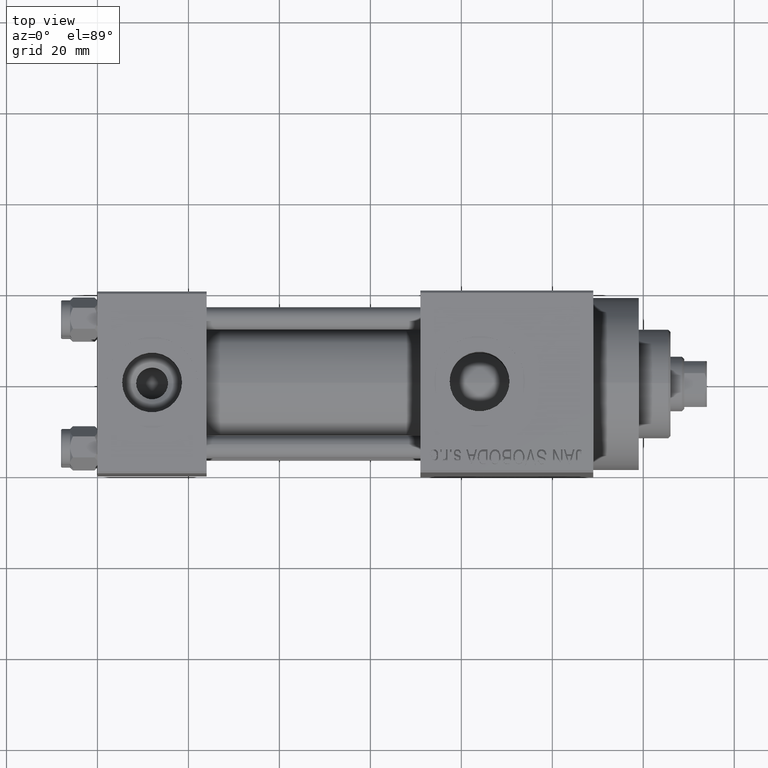
[diagram: clean part render]
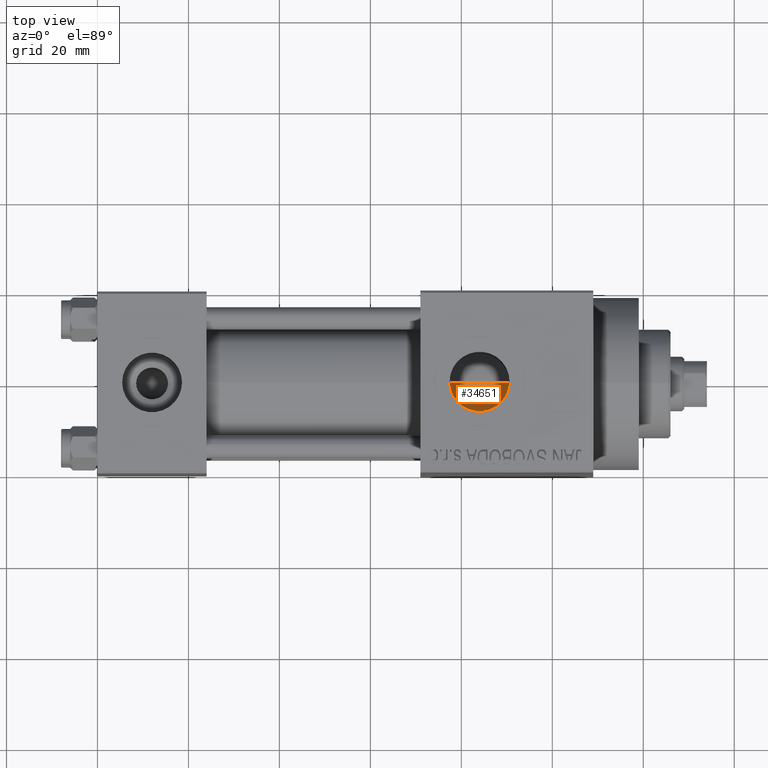
[diagram: same view with one face highlighted and labeled with its STEP entity id]
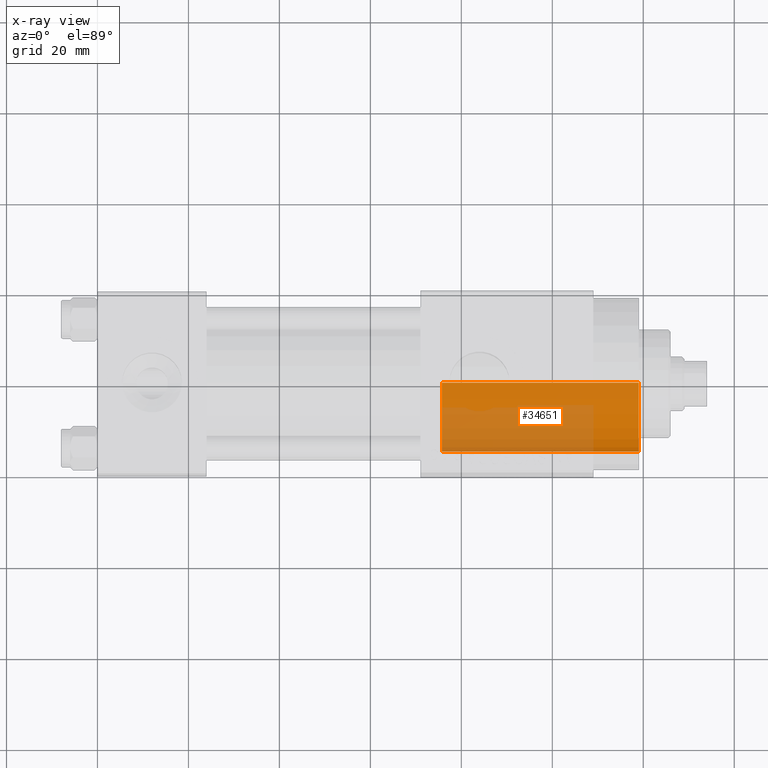
[diagram: x-ray of the same camera — body ghosted, the highlighted face saturated]
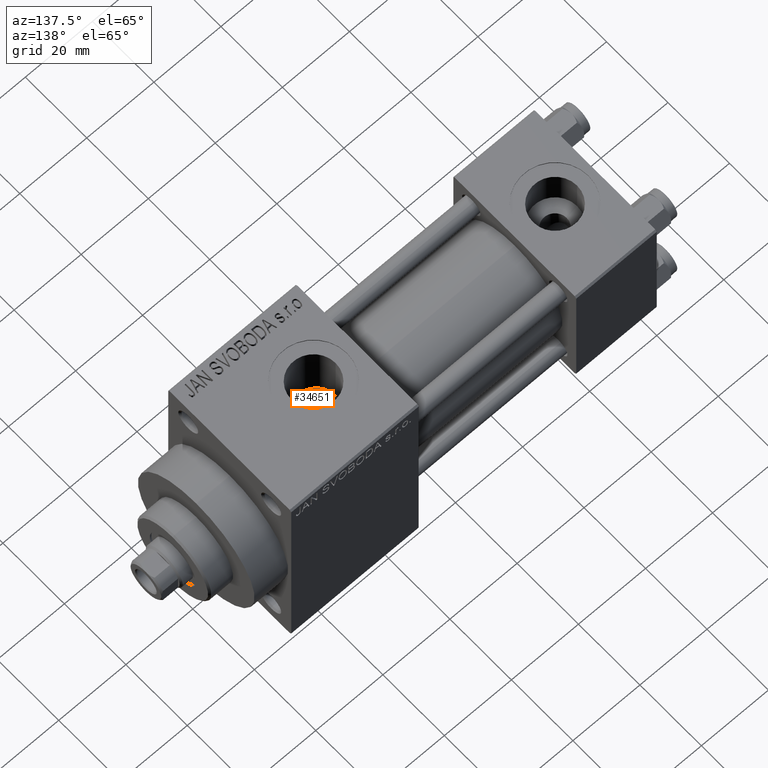
[diagram: same view with one face highlighted and labeled with its STEP entity id]
A machine part, top view. The second image highlights one B-rep face of the part: STEP entity #34651.
The next image is the same camera in x-ray: the body ghosted, the highlighted face saturated — about 50% of this face is hidden behind the body in this view.
A second angle (auxiliary view) of the same face is appended — the face is thin or edge-on in the first view.
In plain terms, the highlighted cylindrical surface (partial cylindrical patch) has radius 15 mm, axis along (-1, 0, 0).
Its self-contained STEP definition (entity closure, byte-faithful):
#992 = AXIS2_PLACEMENT_3D ( 'NONE', #44072, #43613, #32412 ) ;
#1518 = VERTEX_POINT ( 'NONE', #11871 ) ;
#2728 = ORIENTED_EDGE ( 'NONE', *, *, #17965, .T. ) ;
#3337 = CARTESIAN_POINT ( 'NONE',  ( 15.00000000000000000, 1.836970198721029589E-15, 0.000000000000000000 ) ) ;
#5332 = AXIS2_PLACEMENT_3D ( 'NONE', #9707, #43020, #24880 ) ;
#6086 = DIRECTION ( 'NONE',  ( -0.000000000000000000, -0.000000000000000000, -1.000000000000000000 ) ) ;
#9707 = CARTESIAN_POINT ( 'NONE',  ( 0.000000000000000000, 0.000000000000000000, 43.25999999999999801 ) ) ;
#10359 = LINE ( 'NONE', #13469, #23609 ) ;
#11871 = CARTESIAN_POINT ( 'NONE',  ( -15.00000000000000000, 0.000000000000000000, 0.000000000000000000 ) ) ;
#12247 = CARTESIAN_POINT ( 'NONE',  ( 15.00000000000000000, 1.836970198721029589E-15, 43.25999999999999801 ) ) ;
#13469 = CARTESIAN_POINT ( 'NONE',  ( -15.00000000000000000, 0.000000000000000000, 43.25999999999999801 ) ) ;
#13760 = DIRECTION ( 'NONE',  ( 1.000000000000000000, 0.000000000000000000, 0.000000000000000000 ) ) ;
#14213 = DIRECTION ( 'NONE',  ( 0.000000000000000000, 0.000000000000000000, 1.000000000000000000 ) ) ;
#17965 = EDGE_CURVE ( 'NONE', #30962, #1518, #24256, .T. ) ;
#19606 = ORIENTED_EDGE ( 'NONE', *, *, #28534, .T. ) ;
#21446 = CYLINDRICAL_SURFACE ( 'NONE', #992, 15.00000000000000000 ) ;
#23609 = VECTOR ( 'NONE', #6086, 1000.000000000000000 ) ;
#24144 = EDGE_CURVE ( 'NONE', #44323, #29617, #26599, .T. ) ;
#24256 = CIRCLE ( 'NONE', #27304, 15.00000000000000000 ) ;
#24280 = DIRECTION ( 'NONE',  ( -0.000000000000000000, -0.000000000000000000, -1.000000000000000000 ) ) ;
#24880 = DIRECTION ( 'NONE',  ( 1.000000000000000000, 0.000000000000000000, 0.000000000000000000 ) ) ;
#26109 = EDGE_CURVE ( 'NONE', #29617, #1518, #10359, .T. ) ;
#26599 = CIRCLE ( 'NONE', #5332, 15.00000000000000000 ) ;
#27304 = AXIS2_PLACEMENT_3D ( 'NONE', #28488, #14213, #13760 ) ;
#27873 = LINE ( 'NONE', #42411, #45784 ) ;
#28488 = CARTESIAN_POINT ( 'NONE',  ( 0.000000000000000000, 0.000000000000000000, 0.000000000000000000 ) ) ;
#28534 = EDGE_CURVE ( 'NONE', #44323, #30962, #27873, .T. ) ;
#29497 = ORIENTED_EDGE ( 'NONE', *, *, #26109, .F. ) ;
#29617 = VERTEX_POINT ( 'NONE', #35970 ) ;
#30793 = EDGE_LOOP ( 'NONE', ( #44963, #19606, #2728, #29497 ) ) ;
#30962 = VERTEX_POINT ( 'NONE', #3337 ) ;
#32412 = DIRECTION ( 'NONE',  ( -1.000000000000000000, 0.000000000000000000, 0.000000000000000000 ) ) ;
#34651 = ADVANCED_FACE ( 'NONE', ( #40735 ), #21446, .T. ) ;
#35970 = CARTESIAN_POINT ( 'NONE',  ( -15.00000000000000000, 0.000000000000000000, 43.25999999999999801 ) ) ;
#40735 = FACE_OUTER_BOUND ( 'NONE', #30793, .T. ) ;
#42411 = CARTESIAN_POINT ( 'NONE',  ( 15.00000000000000000, 1.836970198721029589E-15, 43.25999999999999801 ) ) ;
#43020 = DIRECTION ( 'NONE',  ( 0.000000000000000000, 0.000000000000000000, 1.000000000000000000 ) ) ;
#43613 = DIRECTION ( 'NONE',  ( -0.000000000000000000, -0.000000000000000000, -1.000000000000000000 ) ) ;
#44072 = CARTESIAN_POINT ( 'NONE',  ( 0.000000000000000000, 0.000000000000000000, 43.25999999999999801 ) ) ;
#44323 = VERTEX_POINT ( 'NONE', #12247 ) ;
#44963 = ORIENTED_EDGE ( 'NONE', *, *, #24144, .F. ) ;
#45784 = VECTOR ( 'NONE', #24280, 1000.000000000000000 ) ;